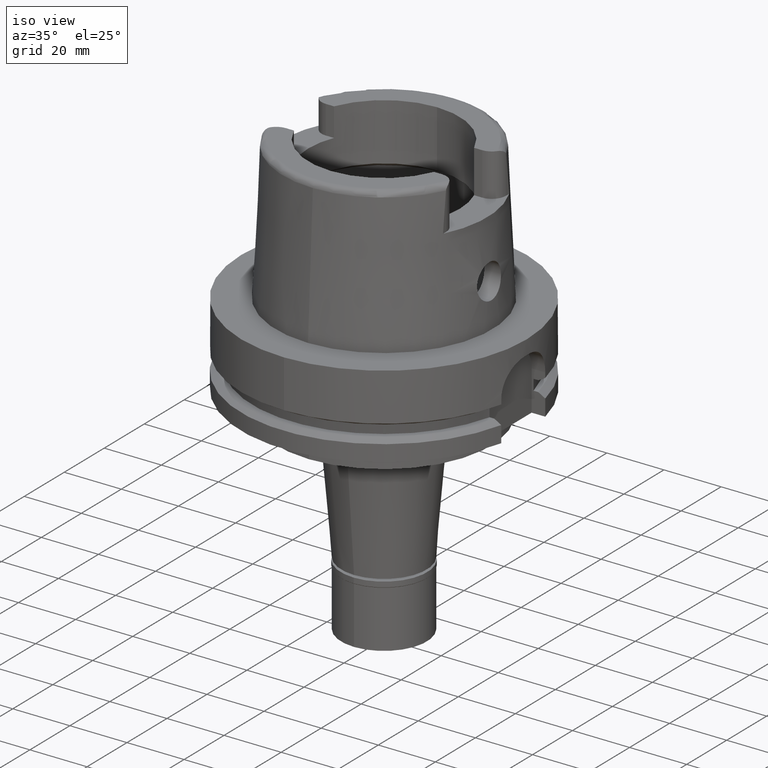
[diagram: clean part render]
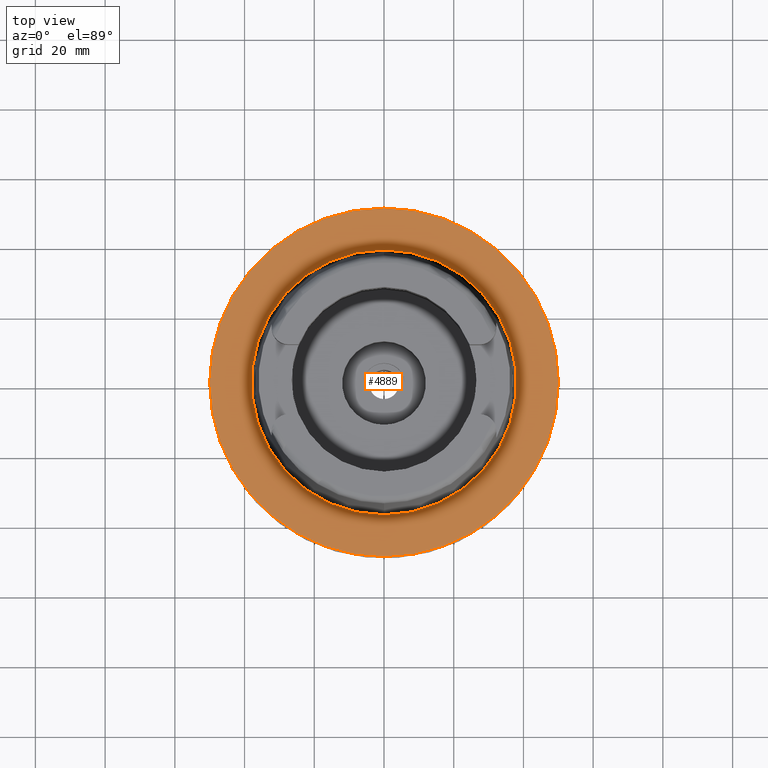
[diagram: tour spotlight — one face highlighted and labeled with its STEP entity id]
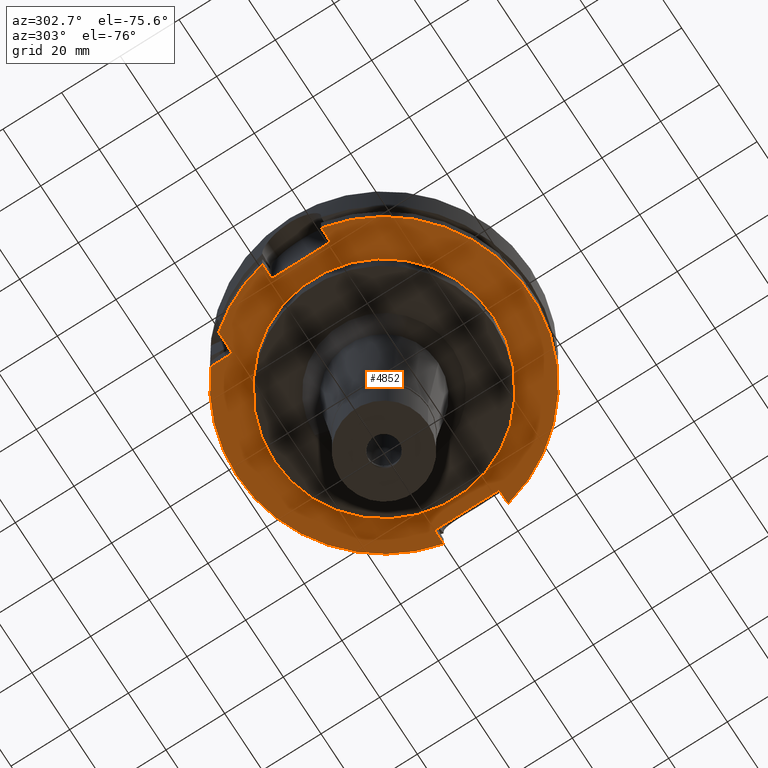
[diagram: tour spotlight — one face highlighted and labeled with its STEP entity id]
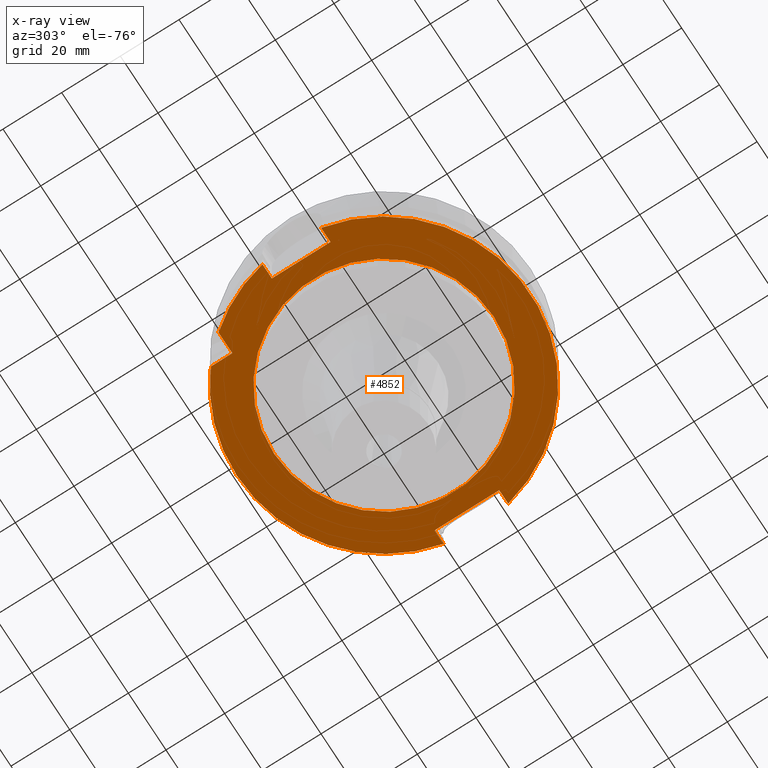
[diagram: x-ray of the same camera — body ghosted, this tour face saturated]
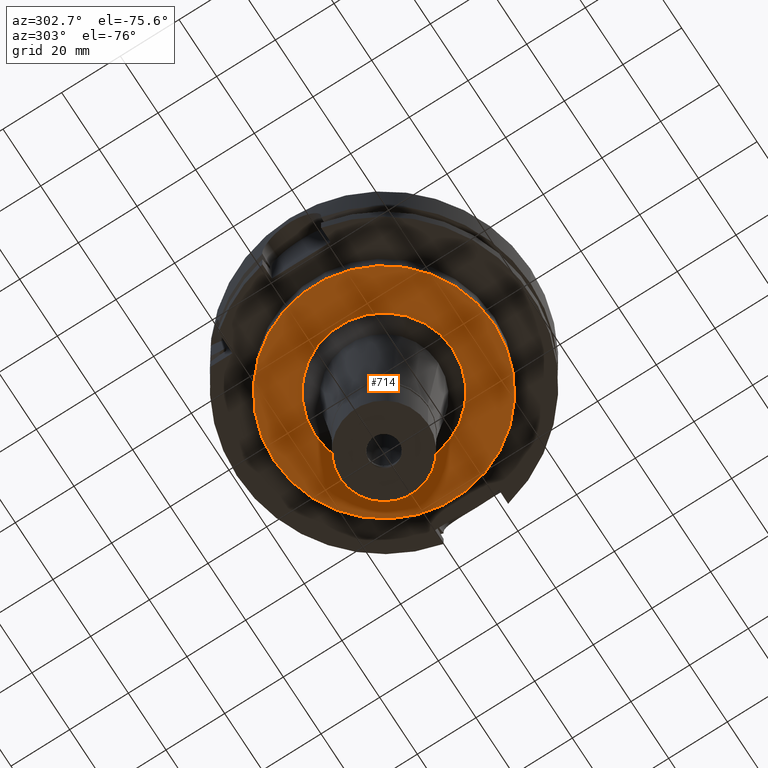
[diagram: tour spotlight — one face highlighted and labeled with its STEP entity id]
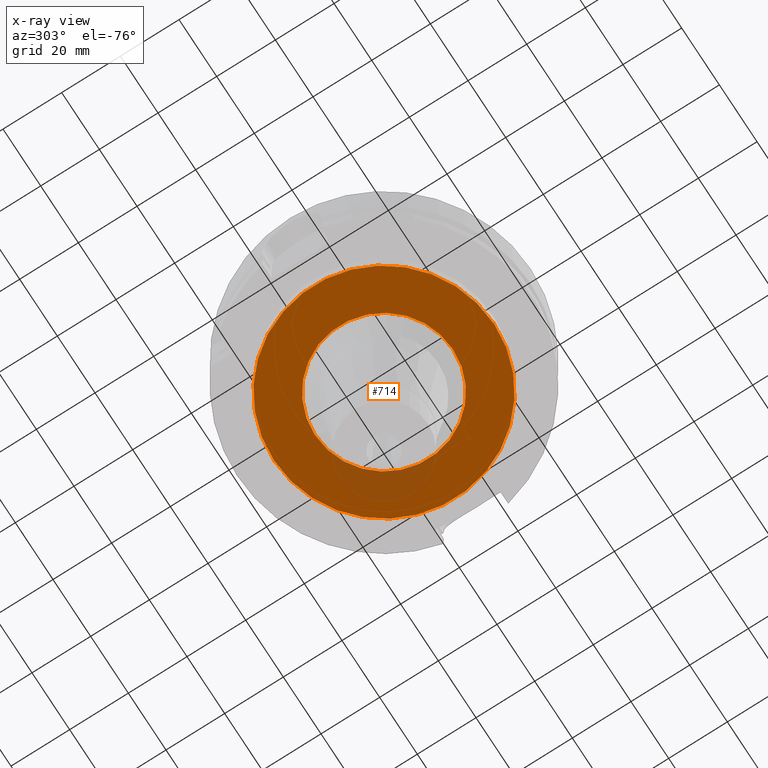
[diagram: x-ray of the same camera — body ghosted, this tour face saturated]
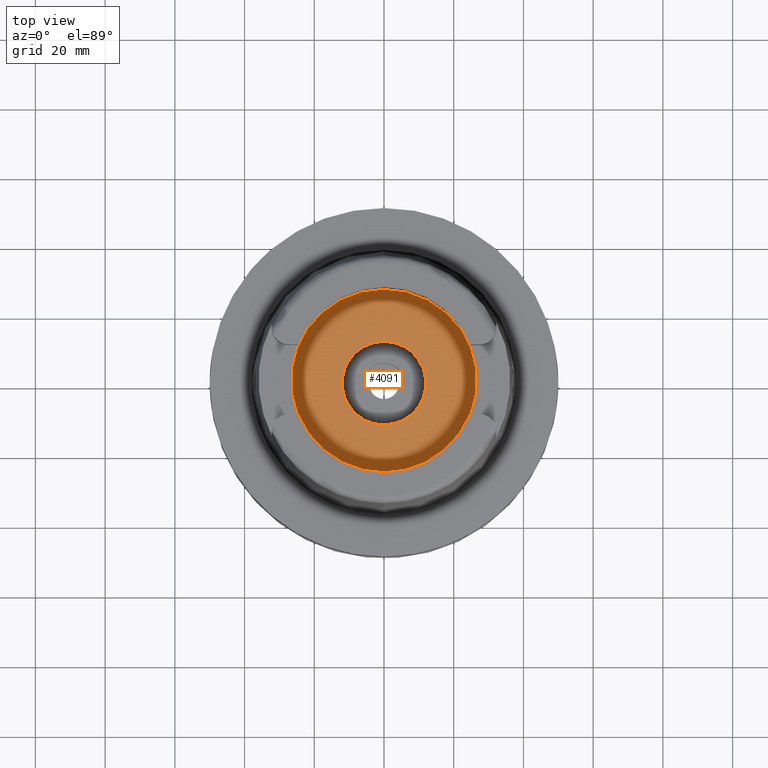
[diagram: tour spotlight — one face highlighted and labeled with its STEP entity id]
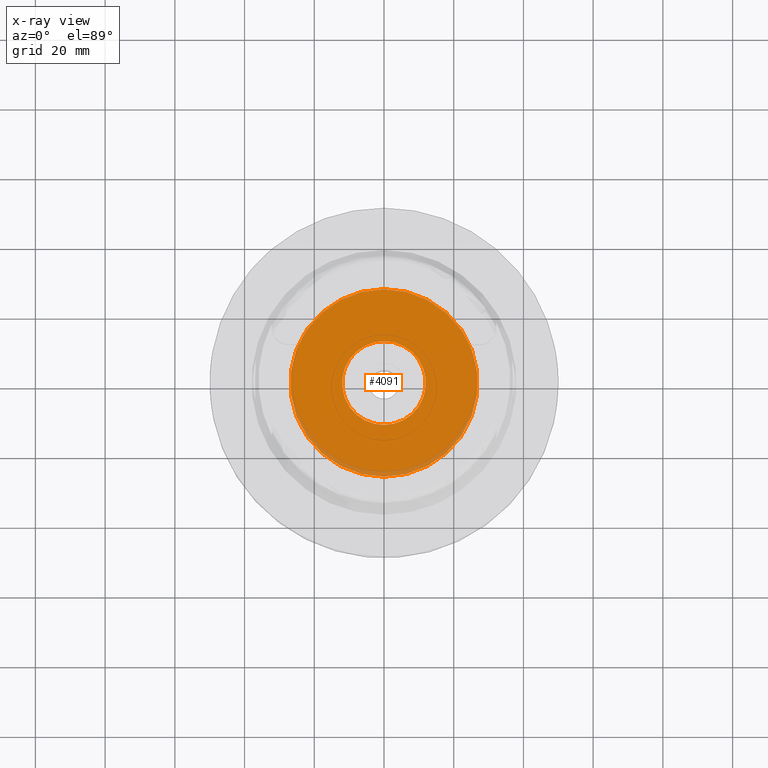
[diagram: x-ray of the same camera — body ghosted, this tour face saturated]
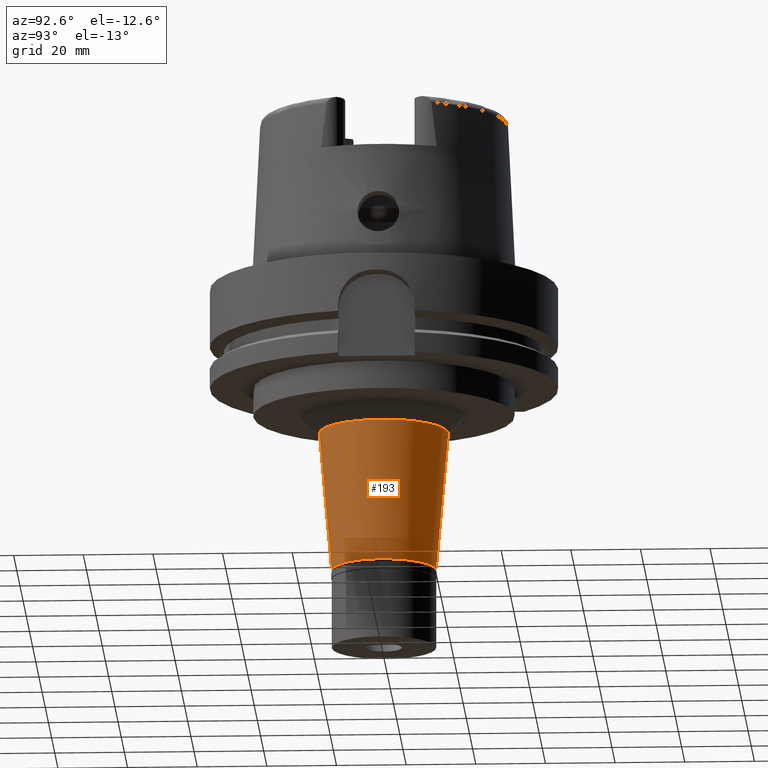
[diagram: tour spotlight — one face highlighted and labeled with its STEP entity id]
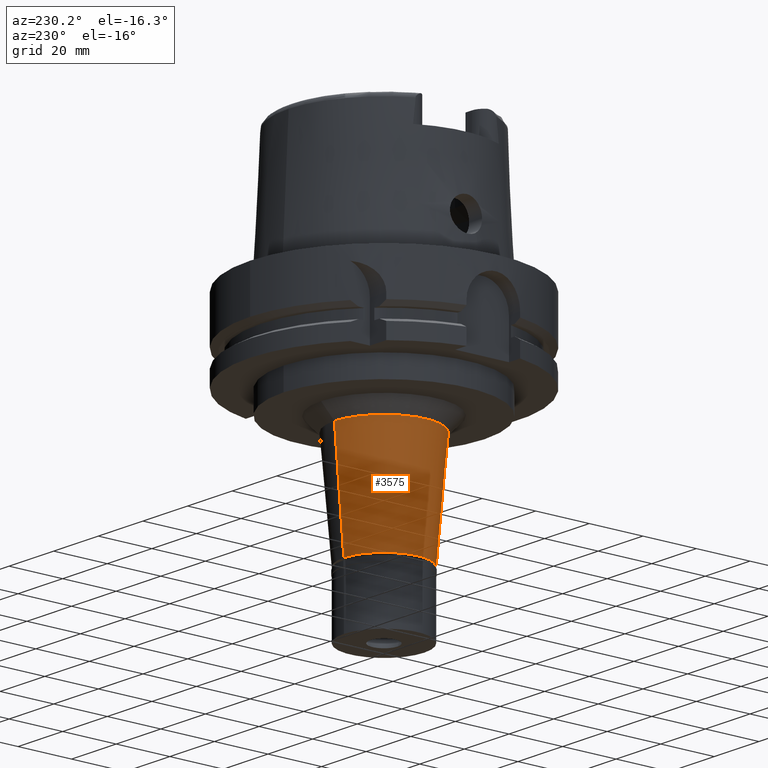
[diagram: tour spotlight — one face highlighted and labeled with its STEP entity id]
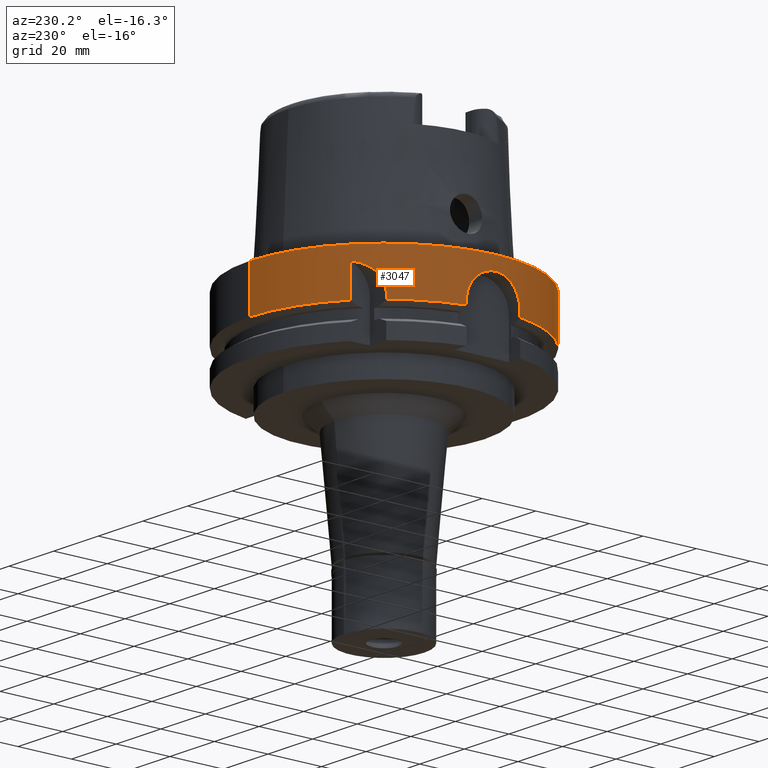
[diagram: tour spotlight — one face highlighted and labeled with its STEP entity id]
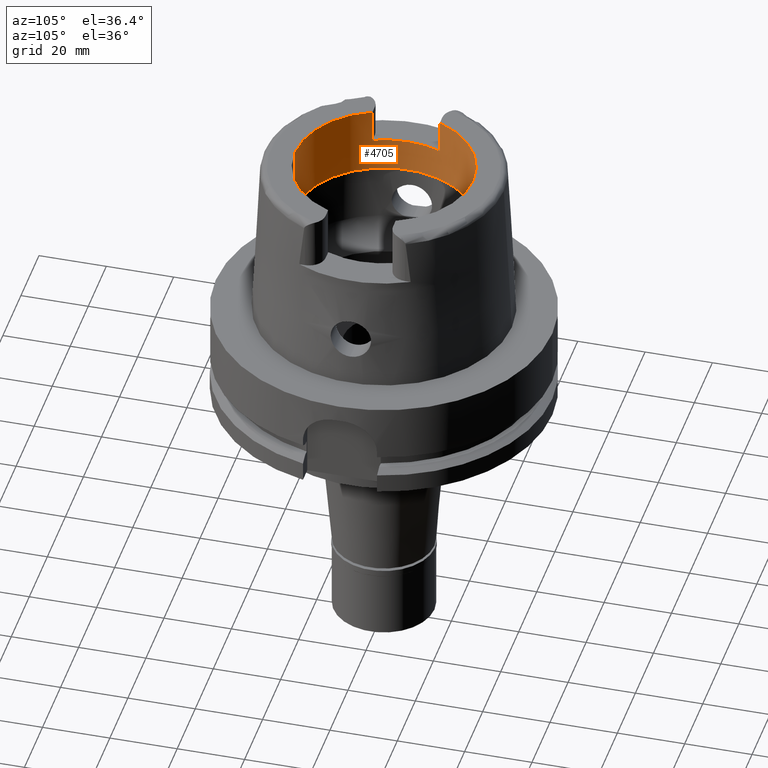
[diagram: tour spotlight — one face highlighted and labeled with its STEP entity id]
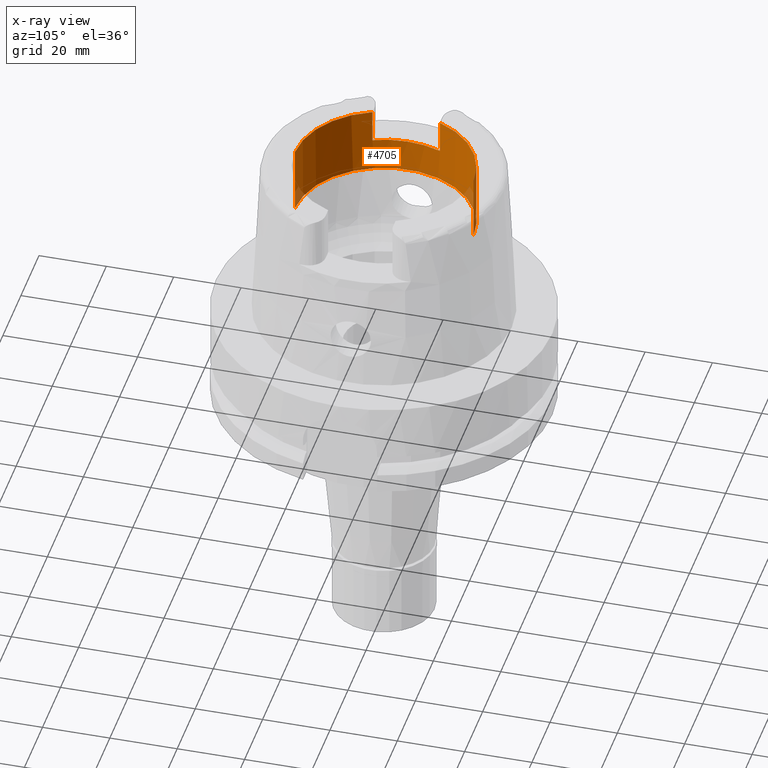
[diagram: x-ray of the same camera — body ghosted, this tour face saturated]
A machine part: a face-by-face anatomy tour. The part has 126 B-rep faces; the first image is the clean iso view, then the 8 largest visible faces are spotlighted one at a time (largest first), each with its STEP entity span.

Face 1 — top view, entity #4889. In plain terms, the highlighted planar face has unit normal (0, 0, 1).
Definition (entity closure, byte-faithful):
#225 = CARTESIAN_POINT ( 'NONE',  ( 0.0000000000000000000, 0.0000000000000000000, 1.136868377215999875E-13 ) ) ;
#361 = CARTESIAN_POINT ( 'NONE',  ( 0.0000000000000000000, -50.00000000000000000, 1.136868377215999875E-13 ) ) ;
#418 = DIRECTION ( 'NONE',  ( 0.0000000000000000000, 1.000000000000000000, 0.0000000000000000000 ) ) ;
#559 = CARTESIAN_POINT ( 'NONE',  ( 0.0000000000000000000, 0.0000000000000000000, 1.023181539494999863E-12 ) ) ;
#636 = EDGE_LOOP ( 'NONE', ( #5322, #1328 ) ) ;
#725 = EDGE_CURVE ( 'NONE', #3907, #4337, #5302, .T. ) ;
#823 = VERTEX_POINT ( 'NONE', #5038 ) ;
#876 = AXIS2_PLACEMENT_3D ( 'NONE', #559, #2286, #4508 ) ;
#1065 = CARTESIAN_POINT ( 'NONE',  ( 0.0000000000000000000, 50.00000000000000000, 8.052817671947998165E-14 ) ) ;
#1154 = DIRECTION ( 'NONE',  ( 1.000000000000000000, 0.0000000000000000000, 0.0000000000000000000 ) ) ;
#1210 = VERTEX_POINT ( 'NONE', #5488 ) ;
#1328 = ORIENTED_EDGE ( 'NONE', *, *, #2483, .F. ) ;
#1630 = DIRECTION ( 'NONE',  ( 0.0000000000000000000, 0.0000000000000000000, 1.000000000000000000 ) ) ;
#1699 = CARTESIAN_POINT ( 'NONE',  ( 0.0000000000000000000, 0.0000000000000000000, 1.136868377215999875E-13 ) ) ;
#1772 = AXIS2_PLACEMENT_3D ( 'NONE', #1699, #4713, #418 ) ;
#2058 = AXIS2_PLACEMENT_3D ( 'NONE', #225, #4552, #2496 ) ;
#2088 = FACE_OUTER_BOUND ( 'NONE', #2191, .T. ) ;
#2191 = EDGE_LOOP ( 'NONE', ( #4050, #2901 ) ) ;
#2225 = AXIS2_PLACEMENT_3D ( 'NONE', #4384, #5239, #4758 ) ;
#2286 = DIRECTION ( 'NONE',  ( 0.0000000000000000000, 0.0000000000000000000, 1.000000000000000000 ) ) ;
#2483 = EDGE_CURVE ( 'NONE', #823, #1210, #5285, .T. ) ;
#2496 = DIRECTION ( 'NONE',  ( 0.0000000000000000000, -1.000000000000000000, 0.0000000000000000000 ) ) ;
#2501 = CIRCLE ( 'NONE', #876, 38.00001658251999714 ) ;
#2763 = CIRCLE ( 'NONE', #1772, 50.00000000000000000 ) ;
#2901 = ORIENTED_EDGE ( 'NONE', *, *, #725, .F. ) ;
#3411 = EDGE_CURVE ( 'NONE', #4337, #3907, #2763, .T. ) ;
#3413 = CARTESIAN_POINT ( 'NONE',  ( 0.0000000000000000000, 0.0000000000000000000, 1.421085471519999843E-14 ) ) ;
#3580 = AXIS2_PLACEMENT_3D ( 'NONE', #3413, #1630, #1154 ) ;
#3630 = EDGE_CURVE ( 'NONE', #1210, #823, #2501, .T. ) ;
#3806 = PLANE ( 'NONE',  #3580 ) ;
#3907 = VERTEX_POINT ( 'NONE', #361 ) ;
#4050 = ORIENTED_EDGE ( 'NONE', *, *, #3411, .F. ) ;
#4337 = VERTEX_POINT ( 'NONE', #1065 ) ;
#4384 = CARTESIAN_POINT ( 'NONE',  ( 0.0000000000000000000, 0.0000000000000000000, 1.023181539494999863E-12 ) ) ;
#4508 = DIRECTION ( 'NONE',  ( 0.0000000000000000000, 1.000000000000000000, 0.0000000000000000000 ) ) ;
#4552 = DIRECTION ( 'NONE',  ( 0.0000000000000000000, 0.0000000000000000000, -1.000000000000000000 ) ) ;
#4713 = DIRECTION ( 'NONE',  ( 0.0000000000000000000, 0.0000000000000000000, -1.000000000000000000 ) ) ;
#4758 = DIRECTION ( 'NONE',  ( 0.0000000000000000000, -1.000000000000000000, 0.0000000000000000000 ) ) ;
#4889 = ADVANCED_FACE ( 'NONE', ( #2088, #5467 ), #3806, .T. ) ;
#5038 = CARTESIAN_POINT ( 'NONE',  ( 0.0000000000000000000, -38.00001658251999714, 6.892264536873000076E-13 ) ) ;
#5239 = DIRECTION ( 'NONE',  ( 0.0000000000000000000, 0.0000000000000000000, 1.000000000000000000 ) ) ;
#5285 = CIRCLE ( 'NONE', #2225, 38.00001658251999714 ) ;
#5302 = CIRCLE ( 'NONE', #2058, 50.00000000000000000 ) ;
#5322 = ORIENTED_EDGE ( 'NONE', *, *, #3630, .F. ) ;
#5467 = FACE_BOUND ( 'NONE', #636, .T. ) ;
#5488 = CARTESIAN_POINT ( 'NONE',  ( 0.0000000000000000000, 38.00001658251999714, 1.023181539494999863E-12 ) ) ;

Face 2 — auxiliary view, entity #4852. An x-ray twin of the same camera follows (body ghosted, this face saturated) — the face is partly hidden behind the body. In plain terms, the highlighted planar face has unit normal (0, 0, 1).
Definition (entity closure, byte-faithful):
#137 = AXIS2_PLACEMENT_3D ( 'NONE', #2029, #1977, #1067 ) ;
#153 = EDGE_CURVE ( 'NONE', #1119, #3351, #1867, .T. ) ;
#171 = DIRECTION ( 'NONE',  ( 1.000000000000000000, 1.711257052401000108E-14, 0.0000000000000000000 ) ) ;
#223 = LINE ( 'NONE', #5343, #5370 ) ;
#269 = CARTESIAN_POINT ( 'NONE',  ( 0.0000000000000000000, 0.0000000000000000000, -29.00000000000000000 ) ) ;
#296 = DIRECTION ( 'NONE',  ( 0.0000000000000000000, 0.0000000000000000000, 1.000000000000000000 ) ) ;
#377 = EDGE_CURVE ( 'NONE', #844, #2096, #2316, .T. ) ;
#397 = CARTESIAN_POINT ( 'NONE',  ( 44.00000000000000000, 11.00000000000000000, -29.00000000000000000 ) ) ;
#403 = DIRECTION ( 'NONE',  ( -1.000000000000000000, 4.627973610177000155E-14, 0.0000000000000000000 ) ) ;
#567 = EDGE_CURVE ( 'NONE', #5115, #2096, #4046, .T. ) ;
#692 = DIRECTION ( 'NONE',  ( 0.0000000000000000000, 1.000000000000000000, 0.0000000000000000000 ) ) ;
#756 = DIRECTION ( 'NONE',  ( 0.0000000000000000000, 1.000000000000000000, 0.0000000000000000000 ) ) ;
#774 = DIRECTION ( 'NONE',  ( 4.798503851105999980E-14, 1.000000000000000000, 0.0000000000000000000 ) ) ;
#776 = DIRECTION ( 'NONE',  ( -1.000000000000000000, -4.627973610177000155E-14, 0.0000000000000000000 ) ) ;
#824 = CARTESIAN_POINT ( 'NONE',  ( -31.50000000000000000, 38.82975663071000128, -29.00000000000000000 ) ) ;
#844 = VERTEX_POINT ( 'NONE', #5062 ) ;
#1067 = DIRECTION ( 'NONE',  ( 0.0000000000000000000, -1.000000000000000000, 0.0000000000000000000 ) ) ;
#1073 = ORIENTED_EDGE ( 'NONE', *, *, #2049, .T. ) ;
#1119 = VERTEX_POINT ( 'NONE', #1198 ) ;
#1198 = CARTESIAN_POINT ( 'NONE',  ( 48.77499359303000404, 11.00000000000000000, -29.00000000000000000 ) ) ;
#1201 = LINE ( 'NONE', #2927, #3861 ) ;
#1261 = LINE ( 'NONE', #3321, #2489 ) ;
#1292 = DIRECTION ( 'NONE',  ( 0.0000000000000000000, 0.0000000000000000000, 1.000000000000000000 ) ) ;
#1319 = ORIENTED_EDGE ( 'NONE', *, *, #5308, .F. ) ;
#1335 = VECTOR ( 'NONE', #171, 1000.000000000000000 ) ;
#1377 = CARTESIAN_POINT ( 'NONE',  ( 0.0000000000000000000, 0.0000000000000000000, -29.00000000000000000 ) ) ;
#1511 = DIRECTION ( 'NONE',  ( 0.0000000000000000000, 0.0000000000000000000, 1.000000000000000000 ) ) ;
#1604 = AXIS2_PLACEMENT_3D ( 'NONE', #269, #3721, #2655 ) ;
#1714 = FACE_OUTER_BOUND ( 'NONE', #4638, .T. ) ;
#1723 = CARTESIAN_POINT ( 'NONE',  ( -38.82975663071000128, 31.50000000000000000, -29.00000000000000000 ) ) ;
#1814 = VERTEX_POINT ( 'NONE', #1723 ) ;
#1846 = VECTOR ( 'NONE', #3740, 1000.000000000000000 ) ;
#1867 = CIRCLE ( 'NONE', #2053, 50.00000000000000000 ) ;
#1933 = CARTESIAN_POINT ( 'NONE',  ( 0.0000000000000000000, 0.0000000000000000000, -29.00000000000000000 ) ) ;
#1977 = DIRECTION ( 'NONE',  ( 0.0000000000000000000, 0.0000000000000000000, -1.000000000000000000 ) ) ;
#1986 = ORIENTED_EDGE ( 'NONE', *, *, #2108, .F. ) ;
#2026 = CARTESIAN_POINT ( 'NONE',  ( -44.00000000000000000, -10.00000000000000000, -29.00000000000000000 ) ) ;
#2029 = CARTESIAN_POINT ( 'NONE',  ( 0.0000000000000000000, 0.0000000000000000000, -29.00000000000000000 ) ) ;
#2049 = EDGE_CURVE ( 'NONE', #2626, #3351, #1261, .T. ) ;
#2052 = VERTEX_POINT ( 'NONE', #2107 ) ;
#2053 = AXIS2_PLACEMENT_3D ( 'NONE', #1377, #1511, #4472 ) ;
#2056 = LINE ( 'NONE', #4728, #3134 ) ;
#2096 = VERTEX_POINT ( 'NONE', #5491 ) ;
#2107 = CARTESIAN_POINT ( 'NONE',  ( -48.98979485565999425, 10.00000000000000000, -29.00000000000000000 ) ) ;
#2108 = EDGE_CURVE ( 'NONE', #2744, #1119, #4587, .T. ) ;
#2149 = VECTOR ( 'NONE', #3853, 1000.000000000000000 ) ;
#2276 = EDGE_CURVE ( 'NONE', #5349, #4832, #3129, .T. ) ;
#2316 = CIRCLE ( 'NONE', #4662, 50.00000000000000000 ) ;
#2489 = VECTOR ( 'NONE', #774, 1000.000000000000000 ) ;
#2626 = VERTEX_POINT ( 'NONE', #3257 ) ;
#2654 = EDGE_CURVE ( 'NONE', #2744, #5115, #223, .T. ) ;
#2655 = DIRECTION ( 'NONE',  ( -0.7765951326141738997, 0.6299999999999789102, 0.0000000000000000000 ) ) ;
#2703 = VERTEX_POINT ( 'NONE', #4942 ) ;
#2744 = VERTEX_POINT ( 'NONE', #5541 ) ;
#2927 = CARTESIAN_POINT ( 'NONE',  ( -44.00000000000000000, -10.00000000000000000, -29.00000000000000000 ) ) ;
#2955 = CIRCLE ( 'NONE', #137, 37.50000000000000000 ) ;
#2968 = AXIS2_PLACEMENT_3D ( 'NONE', #4281, #296, #3358 ) ;
#3013 = LINE ( 'NONE', #5258, #2149 ) ;
#3129 = CIRCLE ( 'NONE', #3933, 37.50000000000000000 ) ;
#3134 = VECTOR ( 'NONE', #403, 1000.000000000000000 ) ;
#3232 = CARTESIAN_POINT ( 'NONE',  ( 44.00000000000000000, -11.00000000000000000, -29.00000000000000000 ) ) ;
#3257 = CARTESIAN_POINT ( 'NONE',  ( -31.50000000000000000, 31.50000000000000000, -29.00000000000000000 ) ) ;
#3321 = CARTESIAN_POINT ( 'NONE',  ( -31.50000000000000000, 31.50000000000000000, -29.00000000000000000 ) ) ;
#3351 = VERTEX_POINT ( 'NONE', #824 ) ;
#3358 = DIRECTION ( 'NONE',  ( 1.000000000000000000, 0.0000000000000000000, 0.0000000000000000000 ) ) ;
#3377 = ORIENTED_EDGE ( 'NONE', *, *, #153, .F. ) ;
#3409 = DIRECTION ( 'NONE',  ( 0.0000000000000000000, -1.000000000000000000, 0.0000000000000000000 ) ) ;
#3643 = DIRECTION ( 'NONE',  ( 0.0000000000000000000, -1.000000000000000000, 0.0000000000000000000 ) ) ;
#3677 = EDGE_CURVE ( 'NONE', #4832, #5349, #2955, .T. ) ;
#3721 = DIRECTION ( 'NONE',  ( 0.0000000000000000000, 0.0000000000000000000, 1.000000000000000000 ) ) ;
#3722 = EDGE_LOOP ( 'NONE', ( #5014, #4137 ) ) ;
#3740 = DIRECTION ( 'NONE',  ( 1.000000000000000000, -1.785659532940000023E-14, 0.0000000000000000000 ) ) ;
#3853 = DIRECTION ( 'NONE',  ( -1.000000000000000000, -4.798503851105999980E-14, 0.0000000000000000000 ) ) ;
#3861 = VECTOR ( 'NONE', #776, 1000.000000000000000 ) ;
#3862 = LINE ( 'NONE', #2026, #5383 ) ;
#3885 = ORIENTED_EDGE ( 'NONE', *, *, #5265, .F. ) ;
#3933 = AXIS2_PLACEMENT_3D ( 'NONE', #1933, #5407, #692 ) ;
#4032 = CIRCLE ( 'NONE', #1604, 50.00000000000000711 ) ;
#4042 = ORIENTED_EDGE ( 'NONE', *, *, #2654, .T. ) ;
#4046 = LINE ( 'NONE', #3232, #1335 ) ;
#4073 = ORIENTED_EDGE ( 'NONE', *, *, #377, .F. ) ;
#4137 = ORIENTED_EDGE ( 'NONE', *, *, #3677, .F. ) ;
#4229 = FACE_BOUND ( 'NONE', #3722, .T. ) ;
#4273 = EDGE_CURVE ( 'NONE', #4969, #2052, #2056, .T. ) ;
#4281 = CARTESIAN_POINT ( 'NONE',  ( 0.0000000000000000000, 0.0000000000000000000, -29.00000000000000000 ) ) ;
#4306 = CARTESIAN_POINT ( 'NONE',  ( 0.0000000000000000000, 0.0000000000000000000, -29.00000000000000000 ) ) ;
#4354 = CARTESIAN_POINT ( 'NONE',  ( 0.0000000000000000000, 37.50000000000000000, -29.00000000000000000 ) ) ;
#4467 = CARTESIAN_POINT ( 'NONE',  ( -44.00000000000000000, 10.00000000000000000, -29.00000000000000000 ) ) ;
#4472 = DIRECTION ( 'NONE',  ( 0.0000000000000000000, 1.000000000000000000, 0.0000000000000000000 ) ) ;
#4498 = ORIENTED_EDGE ( 'NONE', *, *, #567, .T. ) ;
#4587 = LINE ( 'NONE', #397, #1846 ) ;
#4591 = ORIENTED_EDGE ( 'NONE', *, *, #4851, .T. ) ;
#4621 = CARTESIAN_POINT ( 'NONE',  ( 0.0000000000000000000, -37.50000000000000000, -29.00000000000000000 ) ) ;
#4638 = EDGE_LOOP ( 'NONE', ( #3377, #1986, #4042, #4498, #4073, #3885, #4591, #4970, #4672, #1319, #1073 ) ) ;
#4662 = AXIS2_PLACEMENT_3D ( 'NONE', #4306, #1292, #3409 ) ;
#4672 = ORIENTED_EDGE ( 'NONE', *, *, #4782, .F. ) ;
#4677 = PLANE ( 'NONE',  #2968 ) ;
#4698 = CARTESIAN_POINT ( 'NONE',  ( 44.00000000000000000, -11.00000000000000000, -29.00000000000000000 ) ) ;
#4728 = CARTESIAN_POINT ( 'NONE',  ( -44.00000000000000000, 10.00000000000000000, -29.00000000000000000 ) ) ;
#4782 = EDGE_CURVE ( 'NONE', #1814, #2052, #4032, .T. ) ;
#4832 = VERTEX_POINT ( 'NONE', #4621 ) ;
#4851 = EDGE_CURVE ( 'NONE', #2703, #4969, #3862, .T. ) ;
#4852 = ADVANCED_FACE ( 'NONE', ( #1714, #4229 ), #4677, .F. ) ;
#4942 = CARTESIAN_POINT ( 'NONE',  ( -44.00000000000000000, -10.00000000000000000, -29.00000000000000000 ) ) ;
#4969 = VERTEX_POINT ( 'NONE', #4467 ) ;
#4970 = ORIENTED_EDGE ( 'NONE', *, *, #4273, .T. ) ;
#5014 = ORIENTED_EDGE ( 'NONE', *, *, #2276, .F. ) ;
#5062 = CARTESIAN_POINT ( 'NONE',  ( -48.98979485565999425, -10.00000000000000000, -29.00000000000000000 ) ) ;
#5115 = VERTEX_POINT ( 'NONE', #4698 ) ;
#5258 = CARTESIAN_POINT ( 'NONE',  ( -31.50000000000000000, 31.50000000000000000, -29.00000000000000000 ) ) ;
#5265 = EDGE_CURVE ( 'NONE', #2703, #844, #1201, .T. ) ;
#5308 = EDGE_CURVE ( 'NONE', #2626, #1814, #3013, .T. ) ;
#5343 = CARTESIAN_POINT ( 'NONE',  ( 44.00000000000000000, 11.00000000000000000, -29.00000000000000000 ) ) ;
#5349 = VERTEX_POINT ( 'NONE', #4354 ) ;
#5370 = VECTOR ( 'NONE', #3643, 1000.000000000000000 ) ;
#5383 = VECTOR ( 'NONE', #756, 1000.000000000000000 ) ;
#5407 = DIRECTION ( 'NONE',  ( 0.0000000000000000000, 0.0000000000000000000, -1.000000000000000000 ) ) ;
#5491 = CARTESIAN_POINT ( 'NONE',  ( 48.77499359303000404, -11.00000000000000000, -29.00000000000000000 ) ) ;
#5541 = CARTESIAN_POINT ( 'NONE',  ( 44.00000000000000000, 11.00000000000000000, -29.00000000000000000 ) ) ;

Face 3 — auxiliary view, entity #714. An x-ray twin of the same camera follows (body ghosted, this face saturated) — the face is partly hidden behind the body. In plain terms, the highlighted planar face has unit normal (0, 0, 1).
Definition (entity closure, byte-faithful):
#43 = DIRECTION ( 'NONE',  ( 0.0000000000000000000, 0.0000000000000000000, 1.000000000000000000 ) ) ;
#117 = VERTEX_POINT ( 'NONE', #5190 ) ;
#127 = AXIS2_PLACEMENT_3D ( 'NONE', #5573, #2469, #2898 ) ;
#378 = ORIENTED_EDGE ( 'NONE', *, *, #4247, .F. ) ;
#547 = EDGE_CURVE ( 'NONE', #117, #3992, #1421, .T. ) ;
#714 = ADVANCED_FACE ( 'NONE', ( #5002, #2079 ), #1173, .F. ) ;
#928 = EDGE_LOOP ( 'NONE', ( #5076, #2217 ) ) ;
#1173 = PLANE ( 'NONE',  #5478 ) ;
#1421 = CIRCLE ( 'NONE', #4757, 23.51704427374000161 ) ;
#1471 = CARTESIAN_POINT ( 'NONE',  ( 0.0000000000000000000, 0.0000000000000000000, -37.00000000000000000 ) ) ;
#1688 = AXIS2_PLACEMENT_3D ( 'NONE', #3267, #1935, #3656 ) ;
#1724 = EDGE_CURVE ( 'NONE', #3127, #2865, #3563, .T. ) ;
#1817 = DIRECTION ( 'NONE',  ( 0.0000000000000000000, 0.0000000000000000000, -1.000000000000000000 ) ) ;
#1935 = DIRECTION ( 'NONE',  ( 0.0000000000000000000, 0.0000000000000000000, -1.000000000000000000 ) ) ;
#2079 = FACE_BOUND ( 'NONE', #5353, .T. ) ;
#2109 = EDGE_CURVE ( 'NONE', #2865, #3127, #2576, .T. ) ;
#2217 = ORIENTED_EDGE ( 'NONE', *, *, #2109, .F. ) ;
#2469 = DIRECTION ( 'NONE',  ( 0.0000000000000000000, 0.0000000000000000000, 1.000000000000000000 ) ) ;
#2576 = CIRCLE ( 'NONE', #127, 37.50000000000000000 ) ;
#2596 = CIRCLE ( 'NONE', #1688, 23.51704427374000161 ) ;
#2628 = DIRECTION ( 'NONE',  ( 0.0000000000000000000, 1.000000000000000000, 0.0000000000000000000 ) ) ;
#2865 = VERTEX_POINT ( 'NONE', #4584 ) ;
#2871 = CARTESIAN_POINT ( 'NONE',  ( 0.0000000000000000000, 0.0000000000000000000, -37.00000000000000000 ) ) ;
#2898 = DIRECTION ( 'NONE',  ( 0.0000000000000000000, -1.000000000000000000, 0.0000000000000000000 ) ) ;
#3125 = AXIS2_PLACEMENT_3D ( 'NONE', #5591, #43, #2628 ) ;
#3127 = VERTEX_POINT ( 'NONE', #3591 ) ;
#3267 = CARTESIAN_POINT ( 'NONE',  ( 0.0000000000000000000, 0.0000000000000000000, -37.00000000000000000 ) ) ;
#3563 = CIRCLE ( 'NONE', #3125, 37.50000000000000000 ) ;
#3591 = CARTESIAN_POINT ( 'NONE',  ( 0.0000000000000000000, 37.50000000000000000, -37.00000000000000000 ) ) ;
#3656 = DIRECTION ( 'NONE',  ( 0.0000000000000000000, -1.000000000000000000, 0.0000000000000000000 ) ) ;
#3989 = DIRECTION ( 'NONE',  ( 0.0000000000000000000, 1.000000000000000000, 0.0000000000000000000 ) ) ;
#3992 = VERTEX_POINT ( 'NONE', #5532 ) ;
#4247 = EDGE_CURVE ( 'NONE', #3992, #117, #2596, .T. ) ;
#4520 = ORIENTED_EDGE ( 'NONE', *, *, #547, .F. ) ;
#4584 = CARTESIAN_POINT ( 'NONE',  ( 0.0000000000000000000, -37.50000000000000000, -37.00000000000000000 ) ) ;
#4586 = DIRECTION ( 'NONE',  ( 1.000000000000000000, 0.0000000000000000000, 0.0000000000000000000 ) ) ;
#4612 = DIRECTION ( 'NONE',  ( 0.0000000000000000000, 0.0000000000000000000, 1.000000000000000000 ) ) ;
#4757 = AXIS2_PLACEMENT_3D ( 'NONE', #1471, #1817, #3989 ) ;
#5002 = FACE_OUTER_BOUND ( 'NONE', #928, .T. ) ;
#5076 = ORIENTED_EDGE ( 'NONE', *, *, #1724, .F. ) ;
#5190 = CARTESIAN_POINT ( 'NONE',  ( 0.0000000000000000000, 23.51704427374000161, -37.00000000000000000 ) ) ;
#5353 = EDGE_LOOP ( 'NONE', ( #4520, #378 ) ) ;
#5478 = AXIS2_PLACEMENT_3D ( 'NONE', #2871, #4612, #4586 ) ;
#5532 = CARTESIAN_POINT ( 'NONE',  ( 0.0000000000000000000, -23.51704427374000161, -37.00000000000000000 ) ) ;
#5573 = CARTESIAN_POINT ( 'NONE',  ( 0.0000000000000000000, 0.0000000000000000000, -37.00000000000000000 ) ) ;
#5591 = CARTESIAN_POINT ( 'NONE',  ( 0.0000000000000000000, 0.0000000000000000000, -37.00000000000000000 ) ) ;

Face 4 — top view, entity #4091. An x-ray twin of the same camera follows (body ghosted, this face saturated) — the face is partly hidden behind the body. In plain terms, the highlighted planar face has unit normal (0, 0, 1).
Definition (entity closure, byte-faithful):
#17 = EDGE_LOOP ( 'NONE', ( #1004, #624 ) ) ;
#55 = AXIS2_PLACEMENT_3D ( 'NONE', #4896, #2732, #4448 ) ;
#62 = CARTESIAN_POINT ( 'NONE',  ( 0.0000000000000000000, 0.0000000000000000000, -12.44999999999999929 ) ) ;
#480 = DIRECTION ( 'NONE',  ( 0.0000000000000000000, -1.000000000000000000, 0.0000000000000000000 ) ) ;
#624 = ORIENTED_EDGE ( 'NONE', *, *, #2784, .F. ) ;
#860 = CARTESIAN_POINT ( 'NONE',  ( 0.0000000000000000000, 0.0000000000000000000, -12.44999999999999929 ) ) ;
#1004 = ORIENTED_EDGE ( 'NONE', *, *, #2030, .F. ) ;
#1009 = FACE_OUTER_BOUND ( 'NONE', #1358, .T. ) ;
#1301 = VERTEX_POINT ( 'NONE', #3823 ) ;
#1358 = EDGE_LOOP ( 'NONE', ( #2704, #3686 ) ) ;
#1378 = FACE_BOUND ( 'NONE', #17, .T. ) ;
#1451 = CARTESIAN_POINT ( 'NONE',  ( 0.0000000000000000000, -12.00000000000000000, -12.44999999999999929 ) ) ;
#1593 = VERTEX_POINT ( 'NONE', #5085 ) ;
#1848 = PLANE ( 'NONE',  #55 ) ;
#1943 = AXIS2_PLACEMENT_3D ( 'NONE', #62, #3911, #5111 ) ;
#2030 = EDGE_CURVE ( 'NONE', #1301, #5033, #2852, .T. ) ;
#2214 = DIRECTION ( 'NONE',  ( 0.0000000000000000000, 1.000000000000000000, 0.0000000000000000000 ) ) ;
#2494 = DIRECTION ( 'NONE',  ( 0.0000000000000000000, -1.000000000000000000, 0.0000000000000000000 ) ) ;
#2660 = DIRECTION ( 'NONE',  ( 0.0000000000000000000, 0.0000000000000000000, -1.000000000000000000 ) ) ;
#2704 = ORIENTED_EDGE ( 'NONE', *, *, #5415, .F. ) ;
#2732 = DIRECTION ( 'NONE',  ( 0.0000000000000000000, 0.0000000000000000000, 1.000000000000000000 ) ) ;
#2784 = EDGE_CURVE ( 'NONE', #5033, #1301, #4107, .T. ) ;
#2852 = CIRCLE ( 'NONE', #1943, 12.00000000000000000 ) ;
#3029 = EDGE_CURVE ( 'NONE', #1593, #3434, #3577, .T. ) ;
#3092 = DIRECTION ( 'NONE',  ( 0.0000000000000000000, 0.0000000000000000000, -1.000000000000000000 ) ) ;
#3324 = CIRCLE ( 'NONE', #5132, 26.89999999999999858 ) ;
#3434 = VERTEX_POINT ( 'NONE', #4056 ) ;
#3512 = CARTESIAN_POINT ( 'NONE',  ( 0.0000000000000000000, 0.0000000000000000000, -12.44999999999999929 ) ) ;
#3577 = CIRCLE ( 'NONE', #4206, 26.89999999999999858 ) ;
#3686 = ORIENTED_EDGE ( 'NONE', *, *, #3029, .F. ) ;
#3823 = CARTESIAN_POINT ( 'NONE',  ( 0.0000000000000000000, 12.00000000000000000, -12.44999999999999929 ) ) ;
#3911 = DIRECTION ( 'NONE',  ( 0.0000000000000000000, 0.0000000000000000000, 1.000000000000000000 ) ) ;
#4056 = CARTESIAN_POINT ( 'NONE',  ( 0.0000000000000000000, 26.89999999999999858, -12.44999999999999929 ) ) ;
#4091 = ADVANCED_FACE ( 'NONE', ( #1009, #1378 ), #1848, .T. ) ;
#4107 = CIRCLE ( 'NONE', #4914, 12.00000000000000000 ) ;
#4206 = AXIS2_PLACEMENT_3D ( 'NONE', #3512, #3092, #480 ) ;
#4448 = DIRECTION ( 'NONE',  ( 1.000000000000000000, 0.0000000000000000000, 0.0000000000000000000 ) ) ;
#4896 = CARTESIAN_POINT ( 'NONE',  ( 0.0000000000000000000, 0.0000000000000000000, -12.44999999999999929 ) ) ;
#4914 = AXIS2_PLACEMENT_3D ( 'NONE', #4971, #5036, #2494 ) ;
#4971 = CARTESIAN_POINT ( 'NONE',  ( 0.0000000000000000000, 0.0000000000000000000, -12.44999999999999929 ) ) ;
#5033 = VERTEX_POINT ( 'NONE', #1451 ) ;
#5036 = DIRECTION ( 'NONE',  ( 0.0000000000000000000, 0.0000000000000000000, 1.000000000000000000 ) ) ;
#5085 = CARTESIAN_POINT ( 'NONE',  ( 0.0000000000000000000, -26.89999999999999858, -12.44999999999999929 ) ) ;
#5111 = DIRECTION ( 'NONE',  ( 0.0000000000000000000, 1.000000000000000000, 0.0000000000000000000 ) ) ;
#5132 = AXIS2_PLACEMENT_3D ( 'NONE', #860, #2660, #2214 ) ;
#5415 = EDGE_CURVE ( 'NONE', #3434, #1593, #3324, .T. ) ;

Face 5 — auxiliary view, entity #193. In plain terms, the highlighted conical surface has half-angle 5 deg.
Definition (entity closure, byte-faithful):
#57 = CIRCLE ( 'NONE', #3225, 18.51704427374000161 ) ;
#61 = CARTESIAN_POINT ( 'NONE',  ( 0.0000000000000000000, -15.00000000000000000, -82.19999999999998863 ) ) ;
#193 = ADVANCED_FACE ( 'NONE', ( #5351 ), #1692, .T. ) ;
#448 = VERTEX_POINT ( 'NONE', #61 ) ;
#661 = DIRECTION ( 'NONE',  ( 0.0000000000000000000, 1.000000000000000000, 0.0000000000000000000 ) ) ;
#691 = EDGE_LOOP ( 'NONE', ( #2841, #2155, #4310, #5469 ) ) ;
#703 = CARTESIAN_POINT ( 'NONE',  ( 0.0000000000000000000, -18.51704427374000161, -42.00000000000000000 ) ) ;
#773 = CARTESIAN_POINT ( 'NONE',  ( 0.0000000000000000000, 0.0000000000000000000, -42.00000000000000000 ) ) ;
#842 = DIRECTION ( 'NONE',  ( 0.0000000000000000000, -0.08715574274764407992, -0.9961946980917467664 ) ) ;
#867 = EDGE_CURVE ( 'NONE', #4491, #1268, #57, .T. ) ;
#1268 = VERTEX_POINT ( 'NONE', #1988 ) ;
#1419 = CIRCLE ( 'NONE', #4308, 15.00000000000000000 ) ;
#1682 = CARTESIAN_POINT ( 'NONE',  ( 0.0000000000000000000, 18.51704427374000161, -42.00000000000000000 ) ) ;
#1692 = CONICAL_SURFACE ( 'NONE', #4392, 16.75852213686999903, 0.08726646259969973729 ) ;
#1823 = CARTESIAN_POINT ( 'NONE',  ( 0.0000000000000000000, 0.0000000000000000000, -62.10000000000000142 ) ) ;
#1850 = EDGE_CURVE ( 'NONE', #4491, #448, #4626, .T. ) ;
#1942 = DIRECTION ( 'NONE',  ( 0.0000000000000000000, 0.08715574274764407992, -0.9961946980917467664 ) ) ;
#1988 = CARTESIAN_POINT ( 'NONE',  ( 0.0000000000000000000, 18.51704427374000161, -42.00000000000000000 ) ) ;
#2155 = ORIENTED_EDGE ( 'NONE', *, *, #1850, .T. ) ;
#2190 = CARTESIAN_POINT ( 'NONE',  ( 0.0000000000000000000, 15.00000000000000000, -82.19999999999998863 ) ) ;
#2818 = DIRECTION ( 'NONE',  ( 0.0000000000000000000, 0.0000000000000000000, 1.000000000000000000 ) ) ;
#2841 = ORIENTED_EDGE ( 'NONE', *, *, #867, .F. ) ;
#3225 = AXIS2_PLACEMENT_3D ( 'NONE', #773, #4944, #4132 ) ;
#3500 = VECTOR ( 'NONE', #842, 1000.000000000000114 ) ;
#3573 = DIRECTION ( 'NONE',  ( 0.0000000000000000000, 0.0000000000000000000, 1.000000000000000000 ) ) ;
#4077 = CARTESIAN_POINT ( 'NONE',  ( 0.0000000000000000000, 0.0000000000000000000, -82.19999999999998863 ) ) ;
#4132 = DIRECTION ( 'NONE',  ( 0.0000000000000000000, -1.000000000000000000, 0.0000000000000000000 ) ) ;
#4143 = DIRECTION ( 'NONE',  ( 0.0000000000000000000, -1.000000000000000000, 0.0000000000000000000 ) ) ;
#4308 = AXIS2_PLACEMENT_3D ( 'NONE', #4077, #2818, #4143 ) ;
#4310 = ORIENTED_EDGE ( 'NONE', *, *, #4725, .T. ) ;
#4392 = AXIS2_PLACEMENT_3D ( 'NONE', #1823, #3573, #661 ) ;
#4460 = VECTOR ( 'NONE', #1942, 1000.000000000000114 ) ;
#4491 = VERTEX_POINT ( 'NONE', #4802 ) ;
#4626 = LINE ( 'NONE', #703, #4460 ) ;
#4725 = EDGE_CURVE ( 'NONE', #448, #5327, #1419, .T. ) ;
#4802 = CARTESIAN_POINT ( 'NONE',  ( 0.0000000000000000000, -18.51704427374000161, -42.00000000000000000 ) ) ;
#4821 = EDGE_CURVE ( 'NONE', #1268, #5327, #5528, .T. ) ;
#4944 = DIRECTION ( 'NONE',  ( 0.0000000000000000000, 0.0000000000000000000, 1.000000000000000000 ) ) ;
#5327 = VERTEX_POINT ( 'NONE', #2190 ) ;
#5351 = FACE_OUTER_BOUND ( 'NONE', #691, .T. ) ;
#5469 = ORIENTED_EDGE ( 'NONE', *, *, #4821, .F. ) ;
#5528 = LINE ( 'NONE', #1682, #3500 ) ;

Face 6 — auxiliary view, entity #3575. In plain terms, the highlighted conical surface has half-angle 5 deg.
Definition (entity closure, byte-faithful):
#61 = CARTESIAN_POINT ( 'NONE',  ( 0.0000000000000000000, -15.00000000000000000, -82.19999999999998863 ) ) ;
#224 = DIRECTION ( 'NONE',  ( 0.0000000000000000000, -1.000000000000000000, 0.0000000000000000000 ) ) ;
#448 = VERTEX_POINT ( 'NONE', #61 ) ;
#703 = CARTESIAN_POINT ( 'NONE',  ( 0.0000000000000000000, -18.51704427374000161, -42.00000000000000000 ) ) ;
#842 = DIRECTION ( 'NONE',  ( 0.0000000000000000000, -0.08715574274764407992, -0.9961946980917467664 ) ) ;
#951 = EDGE_CURVE ( 'NONE', #4491, #1268, #3412, .T. ) ;
#1100 = EDGE_CURVE ( 'NONE', #5327, #448, #4763, .T. ) ;
#1268 = VERTEX_POINT ( 'NONE', #1988 ) ;
#1382 = CARTESIAN_POINT ( 'NONE',  ( 0.0000000000000000000, 0.0000000000000000000, -62.10000000000000142 ) ) ;
#1470 = CARTESIAN_POINT ( 'NONE',  ( 0.0000000000000000000, 0.0000000000000000000, -42.00000000000000000 ) ) ;
#1491 = AXIS2_PLACEMENT_3D ( 'NONE', #1382, #3162, #4482 ) ;
#1559 = CARTESIAN_POINT ( 'NONE',  ( 0.0000000000000000000, 0.0000000000000000000, -82.19999999999998863 ) ) ;
#1682 = CARTESIAN_POINT ( 'NONE',  ( 0.0000000000000000000, 18.51704427374000161, -42.00000000000000000 ) ) ;
#1850 = EDGE_CURVE ( 'NONE', #4491, #448, #4626, .T. ) ;
#1942 = DIRECTION ( 'NONE',  ( 0.0000000000000000000, 0.08715574274764407992, -0.9961946980917467664 ) ) ;
#1988 = CARTESIAN_POINT ( 'NONE',  ( 0.0000000000000000000, 18.51704427374000161, -42.00000000000000000 ) ) ;
#2190 = CARTESIAN_POINT ( 'NONE',  ( 0.0000000000000000000, 15.00000000000000000, -82.19999999999998863 ) ) ;
#2325 = AXIS2_PLACEMENT_3D ( 'NONE', #1559, #5061, #4634 ) ;
#2365 = ORIENTED_EDGE ( 'NONE', *, *, #951, .T. ) ;
#2614 = ORIENTED_EDGE ( 'NONE', *, *, #1850, .F. ) ;
#3162 = DIRECTION ( 'NONE',  ( 0.0000000000000000000, 0.0000000000000000000, 1.000000000000000000 ) ) ;
#3206 = EDGE_LOOP ( 'NONE', ( #4813, #2614, #2365, #4283 ) ) ;
#3412 = CIRCLE ( 'NONE', #5571, 18.51704427374000161 ) ;
#3500 = VECTOR ( 'NONE', #842, 1000.000000000000114 ) ;
#3575 = ADVANCED_FACE ( 'NONE', ( #5253 ), #5471, .T. ) ;
#3600 = DIRECTION ( 'NONE',  ( 0.0000000000000000000, 0.0000000000000000000, -1.000000000000000000 ) ) ;
#4283 = ORIENTED_EDGE ( 'NONE', *, *, #4821, .T. ) ;
#4460 = VECTOR ( 'NONE', #1942, 1000.000000000000114 ) ;
#4482 = DIRECTION ( 'NONE',  ( 0.0000000000000000000, 1.000000000000000000, 0.0000000000000000000 ) ) ;
#4491 = VERTEX_POINT ( 'NONE', #4802 ) ;
#4626 = LINE ( 'NONE', #703, #4460 ) ;
#4634 = DIRECTION ( 'NONE',  ( 0.0000000000000000000, 1.000000000000000000, 0.0000000000000000000 ) ) ;
#4763 = CIRCLE ( 'NONE', #2325, 15.00000000000000000 ) ;
#4802 = CARTESIAN_POINT ( 'NONE',  ( 0.0000000000000000000, -18.51704427374000161, -42.00000000000000000 ) ) ;
#4813 = ORIENTED_EDGE ( 'NONE', *, *, #1100, .T. ) ;
#4821 = EDGE_CURVE ( 'NONE', #1268, #5327, #5528, .T. ) ;
#5061 = DIRECTION ( 'NONE',  ( 0.0000000000000000000, 0.0000000000000000000, 1.000000000000000000 ) ) ;
#5253 = FACE_OUTER_BOUND ( 'NONE', #3206, .T. ) ;
#5327 = VERTEX_POINT ( 'NONE', #2190 ) ;
#5471 = CONICAL_SURFACE ( 'NONE', #1491, 16.75852213686999903, 0.08726646259969973729 ) ;
#5528 = LINE ( 'NONE', #1682, #3500 ) ;
#5571 = AXIS2_PLACEMENT_3D ( 'NONE', #1470, #3600, #224 ) ;

Face 7 — auxiliary view, entity #3047. In plain terms, the highlighted cylindrical surface (partial cylindrical patch) has radius 50 mm, axis along (0, 0, 1).
Definition (entity closure, byte-faithful):
#18 = CARTESIAN_POINT ( 'NONE',  ( -49.09271140707787140, -9.482343178681546192, -11.80743996049895728 ) ) ;
#34 = ORIENTED_EDGE ( 'NONE', *, *, #852, .F. ) ;
#85 = DIRECTION ( 'NONE',  ( 3.933032361779000221E-13, -2.534170336197999844E-14, 1.000000000000000000 ) ) ;
#93 = ORIENTED_EDGE ( 'NONE', *, *, #3100, .F. ) ;
#139 = DIRECTION ( 'NONE',  ( 0.0000000000000000000, 2.969006079282000197E-14, -1.000000000000000000 ) ) ;
#148 = EDGE_LOOP ( 'NONE', ( #3157, #3807, #5188, #34, #4412, #2295, #1527, #3383, #5182, #4812, #3174, #93 ) ) ;
#169 = CARTESIAN_POINT ( 'NONE',  ( -37.31949501479383713, 33.27543984046253911, -8.948588517796714825 ) ) ;
#195 = CARTESIAN_POINT ( 'NONE',  ( -37.31219033599432322, 33.28363082479806678, -8.936759192332571544 ) ) ;
#213 = CARTESIAN_POINT ( 'NONE',  ( -49.36413902295042533, 7.957356413242497872, -8.907672157399368018 ) ) ;
#225 = CARTESIAN_POINT ( 'NONE',  ( 0.0000000000000000000, 0.0000000000000000000, 1.136868377215999875E-13 ) ) ;
#313 = CARTESIAN_POINT ( 'NONE',  ( -35.31811743569129902, 35.39270176706914839, -6.718001608656684276 ) ) ;
#315 = LINE ( 'NONE', #3771, #1783 ) ;
#334 = VECTOR ( 'NONE', #4727, 1000.000000000000000 ) ;
#361 = CARTESIAN_POINT ( 'NONE',  ( 0.0000000000000000000, -50.00000000000000000, 1.136868377215999875E-13 ) ) ;
#366 = CARTESIAN_POINT ( 'NONE',  ( -49.24031667928058198, -8.690732839099245766, -10.00953545788953747 ) ) ;
#372 = CARTESIAN_POINT ( 'NONE',  ( -35.13510704273011243, 35.57423175081314781, -6.581752738757653987 ) ) ;
#407 = VERTEX_POINT ( 'NONE', #2220 ) ;
#441 = EDGE_CURVE ( 'NONE', #4337, #407, #1315, .T. ) ;
#546 = B_SPLINE_CURVE_WITH_KNOTS ( 'NONE', 3,
 ( #3200, #4044, #2698, #2806, #4910, #1529, #595, #4095, #4861, #2779, #4414, #1872, #3599, #1958, #3680, #1047, #5316, #1447, #3177, #2327, #169, #195, #4493, #4067, #1926, #715, #771, #2409, #313, #3822, #5089, #4665, #2895, #372, #741, #5427, #4130 ),
 .UNSPECIFIED., .F., .F.,
 ( 4, 2, 2, 1, 1, 2, 2, 2, 2, 1, 1, 1, 2, 2, 2, 2, 1, 1, 1, 1, 2, 2, 4 ),
 ( 0.0000000000000000000, 0.1250000000000163480, 0.1875000000000247302, 0.2187500000000287270, 0.2343750000000302813, 0.2421875000000308364, 0.2500000000000313638, 0.3750000000000423550, 0.4375000000000481837, 0.4687500000000506817, 0.4843750000000517364, 0.4921875000000526801, 0.4960937500000527911, 0.5000000000000528466, 0.6250000000000556222, 0.6875000000000561773, 0.7187500000000560663, 0.7343750000000555112, 0.7421875000000552891, 0.7460937500000551781, 0.7480468750000550671, 0.7500000000000549560, 1.000000000000000000 ),
 .UNSPECIFIED. ) ;
#595 = CARTESIAN_POINT ( 'NONE',  ( -38.56428244599756994, 31.82452985879183416, -12.10463469899827338 ) ) ;
#694 = B_SPLINE_CURVE_WITH_KNOTS ( 'NONE', 3,
 ( #1127, #2036, #2888, #3250, #2856, #2523, #5025, #4603, #1163, #213, #2916, #3759, #1946, #1578, #2071, #2827, #5479, #4962, #3701, #1098, #1612, #1639, #3279, #3731, #734, #2461, #3338, #5054, #4628, #2487, #3365, #5084, #1216, #366, #849, #3391, #18, #5146, #4237, #3061, #3423, #2156 ),
 .UNSPECIFIED., .F., .F.,
 ( 4, 2, 2, 2, 2, 2, 2, 2, 2, 2, 2, 2, 2, 2, 2, 2, 2, 2, 2, 2, 4 ),
 ( 0.0000000000000000000, 0.03125000000000006939, 0.06250000000000013878, 0.1250000000000001110, 0.1875000000000000833, 0.2500000000000000555, 0.3124999999999999445, 0.3437499999999999445, 0.3749999999999998890, 0.4374999999999998335, 0.4999999999999998335, 0.5624999999999997780, 0.5937499999999997780, 0.6249999999999996669, 0.6874999999999996669, 0.7499999999999995559, 0.8124999999999995559, 0.8749999999999995559, 0.9062499999999996669, 0.9374999999999997780, 1.000000000000000000 ),
 .UNSPECIFIED. ) ;
#702 = CARTESIAN_POINT ( 'NONE',  ( -31.50000355958999876, 38.82975374304999860, -16.75239179145000179 ) ) ;
#715 = CARTESIAN_POINT ( 'NONE',  ( -35.96050432240399886, 34.74087343404340089, -7.262054001651731205 ) ) ;
#725 = EDGE_CURVE ( 'NONE', #3907, #4337, #5302, .T. ) ;
#734 = CARTESIAN_POINT ( 'NONE',  ( -49.93451955847145740, -2.577095582779183491, -5.332174567312927493 ) ) ;
#741 = CARTESIAN_POINT ( 'NONE',  ( -34.12331808021225044, 36.57299716602776130, -5.848488290785103239 ) ) ;
#771 = CARTESIAN_POINT ( 'NONE',  ( -35.65907352743423786, 35.04931658956208906, -6.994436737110828695 ) ) ;
#787 = VERTEX_POINT ( 'NONE', #2808 ) ;
#849 = CARTESIAN_POINT ( 'NONE',  ( -49.18418642771310090, -8.998901902026656074, -10.58972549864428458 ) ) ;
#852 = EDGE_CURVE ( 'NONE', #2084, #2541, #315, .T. ) ;
#886 = DIRECTION ( 'NONE',  ( -3.028823767049074487E-07, -2.457085509676059455E-07, -0.9999999999999239497 ) ) ;
#897 = CARTESIAN_POINT ( 'NONE',  ( 0.0000000000000000000, 50.00000000000000000, 8.052817671947998165E-14 ) ) ;
#964 = EDGE_CURVE ( 'NONE', #407, #3642, #3141, .T. ) ;
#1038 = VECTOR ( 'NONE', #2104, 1000.000000000000227 ) ;
#1047 = CARTESIAN_POINT ( 'NONE',  ( -37.61118044267874438, 32.94552884879031751, -9.456416376795056422 ) ) ;
#1065 = CARTESIAN_POINT ( 'NONE',  ( 0.0000000000000000000, 50.00000000000000000, 8.052817671947998165E-14 ) ) ;
#1098 = CARTESIAN_POINT ( 'NONE',  ( -49.98728101595654039, 1.296887710263203930, -5.063028862073664094 ) ) ;
#1127 = CARTESIAN_POINT ( 'NONE',  ( -48.98979485565999425, 10.00000000000000000, -15.00000000000000000 ) ) ;
#1163 = CARTESIAN_POINT ( 'NONE',  ( -49.24057546737061131, 8.689273284154909405, -10.00696051082642590 ) ) ;
#1216 = CARTESIAN_POINT ( 'NONE',  ( -49.36385105112921678, -7.959135214228051147, -8.910023755095679121 ) ) ;
#1251 = DIRECTION ( 'NONE',  ( 0.0000000000000000000, 0.0000000000000000000, 1.000000000000000000 ) ) ;
#1315 = LINE ( 'NONE', #897, #334 ) ;
#1345 = LINE ( 'NONE', #5261, #2309 ) ;
#1447 = CARTESIAN_POINT ( 'NONE',  ( -37.41503322155944034, 33.16804141920809457, -9.106476199927755033 ) ) ;
#1459 = CARTESIAN_POINT ( 'NONE',  ( -48.98979485565999425, -10.00000000000000000, -15.00000000000000000 ) ) ;
#1527 = ORIENTED_EDGE ( 'NONE', *, *, #4746, .T. ) ;
#1529 = CARTESIAN_POINT ( 'NONE',  ( -38.60139174063480993, 31.77950291336138733, -12.28584639899083619 ) ) ;
#1578 = CARTESIAN_POINT ( 'NONE',  ( -49.72223154727912231, 5.270286308982511159, -6.495243174837765920 ) ) ;
#1612 = CARTESIAN_POINT ( 'NONE',  ( -50.00001902432047274, 0.6505459170435400340, -4.999907634461407291 ) ) ;
#1639 = CARTESIAN_POINT ( 'NONE',  ( -49.99998093301591240, -0.6534670004194590431, -5.000092578857410430 ) ) ;
#1783 = VECTOR ( 'NONE', #3259, 1000.000000000000000 ) ;
#1838 = CARTESIAN_POINT ( 'NONE',  ( -31.50000000000000000, 38.82975663071000128, -5.000000000003000267 ) ) ;
#1870 = CIRCLE ( 'NONE', #5027, 49.99999999999997868 ) ;
#1872 = CARTESIAN_POINT ( 'NONE',  ( -38.33684540710900990, 32.09868599089145391, -11.18926707780407348 ) ) ;
#1926 = CARTESIAN_POINT ( 'NONE',  ( -36.15164980181317844, 34.54172806352722347, -7.449566731987761870 ) ) ;
#1946 = CARTESIAN_POINT ( 'NONE',  ( -49.63038046552298965, 6.093459290664489103, -7.043599315314868825 ) ) ;
#1958 = CARTESIAN_POINT ( 'NONE',  ( -37.88606039300585593, 32.62931965270202284, -10.01334532528790255 ) ) ;
#2036 = CARTESIAN_POINT ( 'NONE',  ( -48.98979485566344039, 10.00000000000068390, -14.67491835704066894 ) ) ;
#2058 = AXIS2_PLACEMENT_3D ( 'NONE', #225, #4552, #2496 ) ;
#2071 = CARTESIAN_POINT ( 'NONE',  ( -49.75138070725476780, 4.988442125447416053, -6.326834153193320098 ) ) ;
#2083 = VERTEX_POINT ( 'NONE', #3825 ) ;
#2084 = VERTEX_POINT ( 'NONE', #4697 ) ;
#2091 = CARTESIAN_POINT ( 'NONE',  ( -48.98979485565999425, 10.00000000000000000, -16.75240473580999989 ) ) ;
#2104 = DIRECTION ( 'NONE',  ( 3.166955095344913800E-07, 3.903884141554897929E-07, 0.9999999999998735456 ) ) ;
#2156 = CARTESIAN_POINT ( 'NONE',  ( -48.98979485565999425, -10.00000000000000000, -15.00000000000000000 ) ) ;
#2220 = CARTESIAN_POINT ( 'NONE',  ( 0.0000000000000000000, 50.00000000000000000, -16.75240473580999989 ) ) ;
#2242 = LINE ( 'NONE', #3008, #3306 ) ;
#2295 = ORIENTED_EDGE ( 'NONE', *, *, #2520, .F. ) ;
#2309 = VECTOR ( 'NONE', #85, 1000.000000000000000 ) ;
#2327 = CARTESIAN_POINT ( 'NONE',  ( -37.33558451092378050, 33.25738654260279503, -8.974780201178235828 ) ) ;
#2409 = CARTESIAN_POINT ( 'NONE',  ( -35.50467998598535502, 35.20596897856982821, -6.864039120438885533 ) ) ;
#2410 = DIRECTION ( 'NONE',  ( 0.0000000000000000000, 1.000000000000000000, 0.0000000000000000000 ) ) ;
#2461 = CARTESIAN_POINT ( 'NONE',  ( -49.89840431104618546, -3.201079878653080968, -5.520506000361402599 ) ) ;
#2487 = CARTESIAN_POINT ( 'NONE',  ( -49.62992455194825681, -6.097302004933948361, -7.046391100959627174 ) ) ;
#2496 = DIRECTION ( 'NONE',  ( 0.0000000000000000000, -1.000000000000000000, 0.0000000000000000000 ) ) ;
#2520 = EDGE_CURVE ( 'NONE', #2083, #3473, #1345, .T. ) ;
#2523 = CARTESIAN_POINT ( 'NONE',  ( -49.05322580645559327, 9.684917966149786395, -12.42504068156063290 ) ) ;
#2541 = VERTEX_POINT ( 'NONE', #2091 ) ;
#2604 = DIRECTION ( 'NONE',  ( -0.7765951326141738997, 0.6299999999999789102, 0.0000000000000000000 ) ) ;
#2620 = EDGE_CURVE ( 'NONE', #3907, #3801, #2719, .T. ) ;
#2681 = VERTEX_POINT ( 'NONE', #1838 ) ;
#2698 = CARTESIAN_POINT ( 'NONE',  ( -38.79930797869999282, 31.53775856158500801, -13.63544877378542708 ) ) ;
#2719 = LINE ( 'NONE', #4885, #5557 ) ;
#2720 = CARTESIAN_POINT ( 'NONE',  ( 0.0000000000000000000, 0.0000000000000000000, -16.75240473580999989 ) ) ;
#2742 = EDGE_CURVE ( 'NONE', #787, #2681, #546, .T. ) ;
#2743 = EDGE_CURVE ( 'NONE', #5104, #787, #5514, .T. ) ;
#2779 = CARTESIAN_POINT ( 'NONE',  ( -38.47947819254777357, 31.92694255678185655, -11.74595739456216137 ) ) ;
#2806 = CARTESIAN_POINT ( 'NONE',  ( -38.70796202266988217, 31.64969336939021360, -12.89513209712895758 ) ) ;
#2808 = CARTESIAN_POINT ( 'NONE',  ( -38.82975663071000128, 31.50000000000000000, -14.63689785921000031 ) ) ;
#2827 = CARTESIAN_POINT ( 'NONE',  ( -49.80599996320623291, 4.409853147468653312, -6.018768826933589722 ) ) ;
#2846 = CARTESIAN_POINT ( 'NONE',  ( 0.0000000000000000000, 0.0000000000000000000, -16.75240473580999989 ) ) ;
#2856 = CARTESIAN_POINT ( 'NONE',  ( -49.01530533542553059, 9.874410989145079753, -13.38689900033644342 ) ) ;
#2885 = CARTESIAN_POINT ( 'NONE',  ( 0.0000000000000000000, -50.00000000000000000, -16.75240473580999989 ) ) ;
#2888 = CARTESIAN_POINT ( 'NONE',  ( -48.99301193280668798, 9.984278233541539649, -14.35123416562305110 ) ) ;
#2895 = CARTESIAN_POINT ( 'NONE',  ( -35.14103980338443023, 35.56837138753774497, -6.586068505123956029 ) ) ;
#2916 = CARTESIAN_POINT ( 'NONE',  ( -49.43052037931298059, 7.539695759655129947, -8.397875587999799052 ) ) ;
#3008 = CARTESIAN_POINT ( 'NONE',  ( -31.50000000000000000, 38.82975663071000128, -5.000000000003000267 ) ) ;
#3047 = ADVANCED_FACE ( 'NONE', ( #3959 ), #3181, .T. ) ;
#3061 = CARTESIAN_POINT ( 'NONE',  ( -49.00272811111697990, -9.937255846379999369, -13.70646131497157683 ) ) ;
#3100 = EDGE_CURVE ( 'NONE', #2681, #3642, #2242, .T. ) ;
#3141 = CIRCLE ( 'NONE', #3953, 50.00000000000000000 ) ;
#3157 = ORIENTED_EDGE ( 'NONE', *, *, #2742, .F. ) ;
#3174 = ORIENTED_EDGE ( 'NONE', *, *, #964, .T. ) ;
#3177 = CARTESIAN_POINT ( 'NONE',  ( -37.35962209995603445, 33.23039548375589902, -9.014139361938871886 ) ) ;
#3181 = CYLINDRICAL_SURFACE ( 'NONE', #5560, 50.00000000000000000 ) ;
#3200 = CARTESIAN_POINT ( 'NONE',  ( -38.82975663071000128, 31.50000000000000000, -14.63689785921000031 ) ) ;
#3250 = CARTESIAN_POINT ( 'NONE',  ( -49.00578939422626945, 9.921372684344150983, -13.70666068587121700 ) ) ;
#3259 = DIRECTION ( 'NONE',  ( -4.014125812537999910E-13, -2.635537149646000036E-14, -1.000000000000000000 ) ) ;
#3279 = CARTESIAN_POINT ( 'NONE',  ( -49.98727917437999224, -1.297877227065500350, -5.063039826289916334 ) ) ;
#3291 = CARTESIAN_POINT ( 'NONE',  ( -38.82975730067999365, 31.49999917413000361, -16.75240773889999701 ) ) ;
#3299 = DIRECTION ( 'NONE',  ( -0.9797958971132723072, -0.1999999999999946265, 0.0000000000000000000 ) ) ;
#3306 = VECTOR ( 'NONE', #886, 1000.000000000000114 ) ;
#3320 = EDGE_CURVE ( 'NONE', #2084, #3473, #694, .T. ) ;
#3338 = CARTESIAN_POINT ( 'NONE',  ( -49.87775720024416870, -3.507471625422800443, -5.629572553200978824 ) ) ;
#3341 = EDGE_CURVE ( 'NONE', #5104, #2541, #4470, .T. ) ;
#3365 = CARTESIAN_POINT ( 'NONE',  ( -49.56400203270349891, -6.605565053347206117, -7.463225253139730064 ) ) ;
#3371 = CARTESIAN_POINT ( 'NONE',  ( -38.82975730067999365, 31.49999917413000361, -16.75240773889999701 ) ) ;
#3383 = ORIENTED_EDGE ( 'NONE', *, *, #2620, .F. ) ;
#3391 = CARTESIAN_POINT ( 'NONE',  ( -49.11376096720496065, -9.373077997959802232, -11.49978432326880018 ) ) ;
#3423 = CARTESIAN_POINT ( 'NONE',  ( -48.98979485566344749, -10.00000000000062350, -14.35040085522487630 ) ) ;
#3428 = DIRECTION ( 'NONE',  ( 0.0000000000000000000, 1.000000000000000000, 0.0000000000000000000 ) ) ;
#3473 = VERTEX_POINT ( 'NONE', #1459 ) ;
#3599 = CARTESIAN_POINT ( 'NONE',  ( -38.17632637877797919, 32.29025906751409281, -10.70682109303886698 ) ) ;
#3642 = VERTEX_POINT ( 'NONE', #702 ) ;
#3644 = DIRECTION ( 'NONE',  ( 0.0000000000000000000, 0.0000000000000000000, 1.000000000000000000 ) ) ;
#3680 = CARTESIAN_POINT ( 'NONE',  ( -37.78105715720256086, 32.75094501435587091, -9.787207443908545912 ) ) ;
#3701 = CARTESIAN_POINT ( 'NONE',  ( -49.93766221889708135, 2.576833951301778836, -5.315698782541146805 ) ) ;
#3731 = CARTESIAN_POINT ( 'NONE',  ( -49.94990229587389763, -2.260619775888224936, -5.253370011513535331 ) ) ;
#3759 = CARTESIAN_POINT ( 'NONE',  ( -49.56420834563828492, 6.603984266183363872, -7.461920244031400529 ) ) ;
#3771 = CARTESIAN_POINT ( 'NONE',  ( -48.98979485565999425, 10.00000000000000000, -15.00000000000000000 ) ) ;
#3801 = VERTEX_POINT ( 'NONE', #2885 ) ;
#3807 = ORIENTED_EDGE ( 'NONE', *, *, #2743, .F. ) ;
#3822 = CARTESIAN_POINT ( 'NONE',  ( -35.22322697256004176, 35.48702557326944174, -6.646520070434342564 ) ) ;
#3825 = CARTESIAN_POINT ( 'NONE',  ( -48.98979485565999425, -10.00000000000000000, -16.75240473580999989 ) ) ;
#3879 = CARTESIAN_POINT ( 'NONE',  ( 0.0000000000000000000, 0.0000000000000000000, -105.7150000000000034 ) ) ;
#3907 = VERTEX_POINT ( 'NONE', #361 ) ;
#3953 = AXIS2_PLACEMENT_3D ( 'NONE', #2720, #3644, #2410 ) ;
#3959 = FACE_OUTER_BOUND ( 'NONE', #148, .T. ) ;
#4044 = CARTESIAN_POINT ( 'NONE',  ( -38.82975663071001549, 31.49999999999999289, -14.13563911336040491 ) ) ;
#4067 = CARTESIAN_POINT ( 'NONE',  ( -36.69566108832868423, 33.96628593963398401, -8.038090334087604205 ) ) ;
#4095 = CARTESIAN_POINT ( 'NONE',  ( -38.51599278695042017, 31.88290172099715036, -11.89496732051804884 ) ) ;
#4130 = CARTESIAN_POINT ( 'NONE',  ( -31.50000000000000000, 38.82975663071000128, -5.000000000003000267 ) ) ;
#4237 = CARTESIAN_POINT ( 'NONE',  ( -49.04044161550469738, -9.748804551245822125, -12.74904141137437641 ) ) ;
#4337 = VERTEX_POINT ( 'NONE', #1065 ) ;
#4412 = ORIENTED_EDGE ( 'NONE', *, *, #3320, .T. ) ;
#4414 = CARTESIAN_POINT ( 'NONE',  ( -38.47234326905723378, 31.93553948276375110, -11.71762516327628312 ) ) ;
#4470 = CIRCLE ( 'NONE', #5468, 50.00000000000000711 ) ;
#4493 = CARTESIAN_POINT ( 'NONE',  ( -37.01910174372296325, 33.61201597555657372, -8.465169515716533866 ) ) ;
#4552 = DIRECTION ( 'NONE',  ( 0.0000000000000000000, 0.0000000000000000000, -1.000000000000000000 ) ) ;
#4603 = CARTESIAN_POINT ( 'NONE',  ( -49.18452328894144898, 8.997080570827558077, -10.58577624100580472 ) ) ;
#4628 = CARTESIAN_POINT ( 'NONE',  ( -49.75276534624421743, -4.996883345947556343, -6.312905600454570276 ) ) ;
#4665 = CARTESIAN_POINT ( 'NONE',  ( -35.15478715382987929, 35.55478517146524098, -6.596096162403588536 ) ) ;
#4697 = CARTESIAN_POINT ( 'NONE',  ( -48.98979485565999425, 10.00000000000000000, -15.00000000000000000 ) ) ;
#4727 = DIRECTION ( 'NONE',  ( 0.0000000000000000000, -2.969006079282000197E-14, -1.000000000000000000 ) ) ;
#4746 = EDGE_CURVE ( 'NONE', #2083, #3801, #1870, .T. ) ;
#4803 = DIRECTION ( 'NONE',  ( 0.0000000000000000000, 0.0000000000000000000, 1.000000000000000000 ) ) ;
#4812 = ORIENTED_EDGE ( 'NONE', *, *, #441, .T. ) ;
#4823 = DIRECTION ( 'NONE',  ( 0.0000000000000000000, 0.0000000000000000000, 1.000000000000000000 ) ) ;
#4861 = CARTESIAN_POINT ( 'NONE',  ( -38.49422675836514429, 31.90916109632802744, -11.80550691038211575 ) ) ;
#4885 = CARTESIAN_POINT ( 'NONE',  ( 0.0000000000000000000, -50.00000000000000000, 8.052817671947998165E-14 ) ) ;
#4910 = CARTESIAN_POINT ( 'NONE',  ( -38.66990120765735384, 31.69620807912676241, -12.65001832284792194 ) ) ;
#4962 = CARTESIAN_POINT ( 'NONE',  ( -49.90100947730314829, 3.202912792423203481, -5.504239524062931821 ) ) ;
#5025 = CARTESIAN_POINT ( 'NONE',  ( -49.09037218462303542, 9.497375886715950344, -11.80165732377739651 ) ) ;
#5027 = AXIS2_PLACEMENT_3D ( 'NONE', #2846, #4823, #3299 ) ;
#5054 = CARTESIAN_POINT ( 'NONE',  ( -49.80800702058243701, -4.419787184495206134, -6.005617640351272435 ) ) ;
#5084 = CARTESIAN_POINT ( 'NONE',  ( -49.43014704699988471, -7.542171443543923992, -8.400588336016660662 ) ) ;
#5089 = CARTESIAN_POINT ( 'NONE',  ( -35.17537944399835226, 35.53442238859888391, -6.611165308978790733 ) ) ;
#5104 = VERTEX_POINT ( 'NONE', #3291 ) ;
#5116 = CARTESIAN_POINT ( 'NONE',  ( 0.0000000000000000000, 0.0000000000000000000, -16.75240473580999989 ) ) ;
#5146 = CARTESIAN_POINT ( 'NONE',  ( -49.05607978777005229, -9.670066251730652596, -12.43135662633657290 ) ) ;
#5182 = ORIENTED_EDGE ( 'NONE', *, *, #725, .T. ) ;
#5188 = ORIENTED_EDGE ( 'NONE', *, *, #3341, .T. ) ;
#5261 = CARTESIAN_POINT ( 'NONE',  ( -48.98979485565999425, -10.00000000000000000, -16.75240473580999989 ) ) ;
#5302 = CIRCLE ( 'NONE', #2058, 50.00000000000000000 ) ;
#5316 = CARTESIAN_POINT ( 'NONE',  ( -37.52314912021210347, 33.04585630178716116, -9.293123612968253511 ) ) ;
#5427 = CARTESIAN_POINT ( 'NONE',  ( -32.91423017439915810, 37.68248571379843526, -5.317891981783048116 ) ) ;
#5468 = AXIS2_PLACEMENT_3D ( 'NONE', #5116, #1251, #2604 ) ;
#5479 = CARTESIAN_POINT ( 'NONE',  ( -49.83155971895288161, 4.111934493504846522, -5.878629102294937070 ) ) ;
#5514 = LINE ( 'NONE', #3371, #1038 ) ;
#5557 = VECTOR ( 'NONE', #139, 1000.000000000000000 ) ;
#5560 = AXIS2_PLACEMENT_3D ( 'NONE', #3879, #4803, #3428 ) ;

Face 8 — auxiliary view, entity #4705. An x-ray twin of the same camera follows (body ghosted, this face saturated) — the face is partly hidden behind the body. In plain terms, the highlighted cylindrical surface (partial cylindrical patch) has radius 26.5 mm, axis along (0, 0, 1).
Definition (entity closure, byte-faithful):
#48 = LINE ( 'NONE', #830, #2587 ) ;
#99 = CARTESIAN_POINT ( 'NONE',  ( 0.0000000000000000000, -26.50000000000000000, 30.00337567297000163 ) ) ;
#104 = CARTESIAN_POINT ( 'NONE',  ( 0.0000000000000000000, 0.0000000000000000000, 50.00000000000000000 ) ) ;
#467 = VERTEX_POINT ( 'NONE', #1793 ) ;
#498 = EDGE_CURVE ( 'NONE', #467, #3197, #4926, .T. ) ;
#499 = VERTEX_POINT ( 'NONE', #4495 ) ;
#522 = CARTESIAN_POINT ( 'NONE',  ( 0.0000000000000000000, 0.0000000000000000000, 40.00000000000000000 ) ) ;
#784 = VECTOR ( 'NONE', #1519, 1000.000000000000000 ) ;
#830 = CARTESIAN_POINT ( 'NONE',  ( 0.0000000000000000000, -26.50000000000000000, 30.00337567297000163 ) ) ;
#1069 = CARTESIAN_POINT ( 'NONE',  ( -24.53670515777999839, -10.00999999999999979, 40.00000000000000000 ) ) ;
#1115 = DIRECTION ( 'NONE',  ( 0.0000000000000000000, -1.000000000000000000, 0.0000000000000000000 ) ) ;
#1118 = CYLINDRICAL_SURFACE ( 'NONE', #4575, 26.50000000000000000 ) ;
#1144 = ORIENTED_EDGE ( 'NONE', *, *, #2981, .F. ) ;
#1243 = AXIS2_PLACEMENT_3D ( 'NONE', #522, #1928, #5345 ) ;
#1280 = DIRECTION ( 'NONE',  ( -0.9259134021805098813, -0.3777358490566039562, 0.0000000000000000000 ) ) ;
#1413 = DIRECTION ( 'NONE',  ( 0.0000000000000000000, 0.0000000000000000000, 1.000000000000000000 ) ) ;
#1508 = EDGE_CURVE ( 'NONE', #5274, #3620, #4822, .T. ) ;
#1519 = DIRECTION ( 'NONE',  ( 0.0000000000000000000, -4.406108640804999471E-14, 1.000000000000000000 ) ) ;
#1556 = ORIENTED_EDGE ( 'NONE', *, *, #1508, .T. ) ;
#1691 = DIRECTION ( 'NONE',  ( 0.0000000000000000000, 0.0000000000000000000, -1.000000000000000000 ) ) ;
#1793 = CARTESIAN_POINT ( 'NONE',  ( -24.53670515777999839, 10.00999999999999979, 40.00000000000000000 ) ) ;
#1851 = CIRCLE ( 'NONE', #3846, 26.50000000000000000 ) ;
#1881 = DIRECTION ( 'NONE',  ( 0.0000000000000000000, 0.0000000000000000000, -1.000000000000000000 ) ) ;
#1928 = DIRECTION ( 'NONE',  ( 0.0000000000000000000, 0.0000000000000000000, 1.000000000000000000 ) ) ;
#1998 = FACE_OUTER_BOUND ( 'NONE', #4368, .T. ) ;
#2212 = LINE ( 'NONE', #3930, #2862 ) ;
#2260 = CARTESIAN_POINT ( 'NONE',  ( 0.0000000000000000000, 26.50000000000000000, 30.00337567297000163 ) ) ;
#2319 = CIRCLE ( 'NONE', #3054, 26.50000000000000711 ) ;
#2377 = EDGE_CURVE ( 'NONE', #3571, #3547, #1851, .T. ) ;
#2478 = ORIENTED_EDGE ( 'NONE', *, *, #2377, .T. ) ;
#2510 = ORIENTED_EDGE ( 'NONE', *, *, #498, .T. ) ;
#2587 = VECTOR ( 'NONE', #4268, 1000.000000000000000 ) ;
#2624 = LINE ( 'NONE', #5142, #2765 ) ;
#2765 = VECTOR ( 'NONE', #1691, 1000.000000000000000 ) ;
#2862 = VECTOR ( 'NONE', #4351, 1000.000000000000000 ) ;
#2981 = EDGE_CURVE ( 'NONE', #467, #3620, #2212, .T. ) ;
#3000 = EDGE_CURVE ( 'NONE', #3571, #499, #48, .T. ) ;
#3054 = AXIS2_PLACEMENT_3D ( 'NONE', #3926, #4240, #1280 ) ;
#3146 = DIRECTION ( 'NONE',  ( 0.0000000000000000000, 1.000000000000000000, 0.0000000000000000000 ) ) ;
#3197 = VERTEX_POINT ( 'NONE', #1069 ) ;
#3547 = VERTEX_POINT ( 'NONE', #2260 ) ;
#3571 = VERTEX_POINT ( 'NONE', #99 ) ;
#3620 = VERTEX_POINT ( 'NONE', #4848 ) ;
#3663 = LINE ( 'NONE', #3726, #784 ) ;
#3689 = CARTESIAN_POINT ( 'NONE',  ( 0.0000000000000000000, 0.0000000000000000000, 30.00337567297000163 ) ) ;
#3716 = ORIENTED_EDGE ( 'NONE', *, *, #3000, .F. ) ;
#3726 = CARTESIAN_POINT ( 'NONE',  ( 0.0000000000000000000, 26.50000000000000000, 30.00337567297000163 ) ) ;
#3792 = EDGE_CURVE ( 'NONE', #3547, #5274, #3663, .T. ) ;
#3846 = AXIS2_PLACEMENT_3D ( 'NONE', #3689, #1881, #1115 ) ;
#3854 = EDGE_CURVE ( 'NONE', #4533, #3197, #2624, .T. ) ;
#3926 = CARTESIAN_POINT ( 'NONE',  ( 0.0000000000000000000, 0.0000000000000000000, 50.00000000000000000 ) ) ;
#3930 = CARTESIAN_POINT ( 'NONE',  ( -24.53670515777999839, 10.00999999999999979, 40.00000000000000000 ) ) ;
#3946 = ORIENTED_EDGE ( 'NONE', *, *, #3792, .T. ) ;
#3978 = CARTESIAN_POINT ( 'NONE',  ( 0.0000000000000000000, 0.0000000000000000000, -105.7150000000000034 ) ) ;
#4043 = ORIENTED_EDGE ( 'NONE', *, *, #4509, .T. ) ;
#4223 = ORIENTED_EDGE ( 'NONE', *, *, #3854, .F. ) ;
#4240 = DIRECTION ( 'NONE',  ( 0.0000000000000000000, 0.0000000000000000000, 1.000000000000000000 ) ) ;
#4268 = DIRECTION ( 'NONE',  ( 0.0000000000000000000, 4.406108640804999471E-14, 1.000000000000000000 ) ) ;
#4351 = DIRECTION ( 'NONE',  ( 0.0000000000000000000, 0.0000000000000000000, 1.000000000000000000 ) ) ;
#4368 = EDGE_LOOP ( 'NONE', ( #4223, #4043, #3716, #2478, #3946, #1556, #1144, #2510 ) ) ;
#4373 = DIRECTION ( 'NONE',  ( 0.0000000000000000000, 0.0000000000000000000, 1.000000000000000000 ) ) ;
#4495 = CARTESIAN_POINT ( 'NONE',  ( 0.0000000000000000000, -26.50000000000000000, 50.00000000000000000 ) ) ;
#4509 = EDGE_CURVE ( 'NONE', #4533, #499, #2319, .T. ) ;
#4533 = VERTEX_POINT ( 'NONE', #4716 ) ;
#4575 = AXIS2_PLACEMENT_3D ( 'NONE', #3978, #4373, #4850 ) ;
#4705 = ADVANCED_FACE ( 'NONE', ( #1998 ), #1118, .F. ) ;
#4716 = CARTESIAN_POINT ( 'NONE',  ( -24.53670515777999839, -10.00999999999999979, 50.00000000000000000 ) ) ;
#4822 = CIRCLE ( 'NONE', #4998, 26.50000000000000000 ) ;
#4848 = CARTESIAN_POINT ( 'NONE',  ( -24.53670515777999839, 10.00999999999999979, 50.00000000000000000 ) ) ;
#4850 = DIRECTION ( 'NONE',  ( 0.0000000000000000000, 1.000000000000000000, 0.0000000000000000000 ) ) ;
#4926 = CIRCLE ( 'NONE', #1243, 26.50000000000000711 ) ;
#4998 = AXIS2_PLACEMENT_3D ( 'NONE', #104, #1413, #3146 ) ;
#5142 = CARTESIAN_POINT ( 'NONE',  ( -24.53670515777999839, -10.00999999999999979, 50.00000000000000000 ) ) ;
#5274 = VERTEX_POINT ( 'NONE', #5521 ) ;
#5345 = DIRECTION ( 'NONE',  ( -0.9259134021805098813, 0.3777358490566039562, 0.0000000000000000000 ) ) ;
#5521 = CARTESIAN_POINT ( 'NONE',  ( 0.0000000000000000000, 26.50000000000000000, 50.00000000000000000 ) ) ;